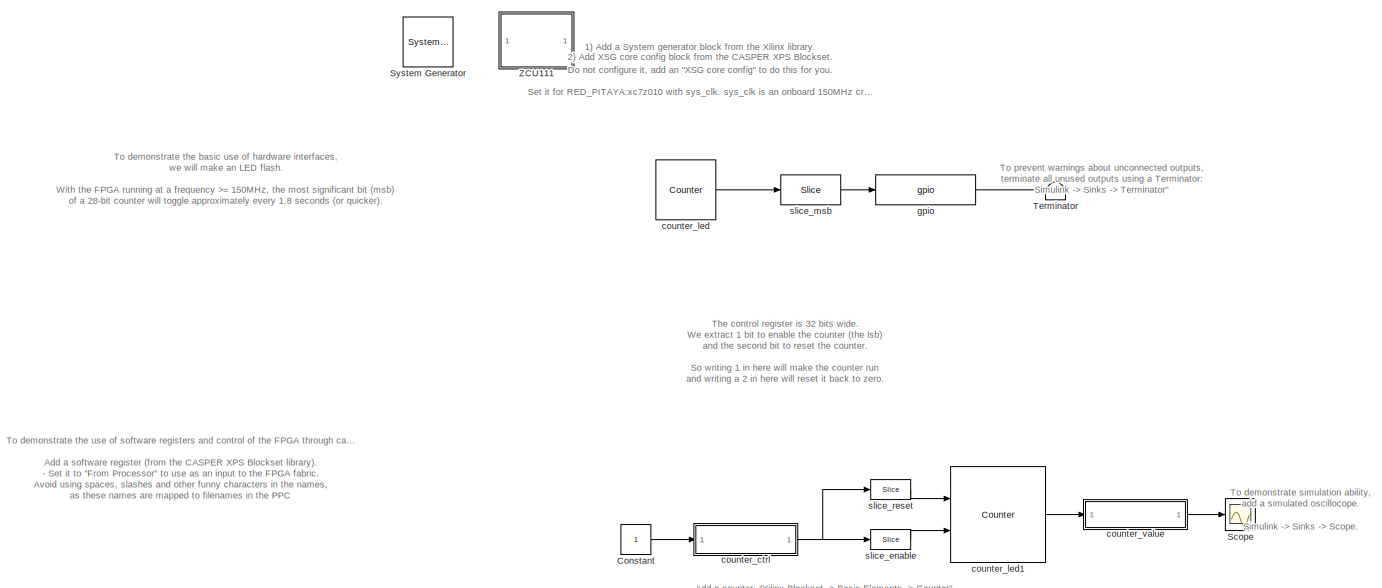
[diagram: root canvas - part 1/2, full width, top band]
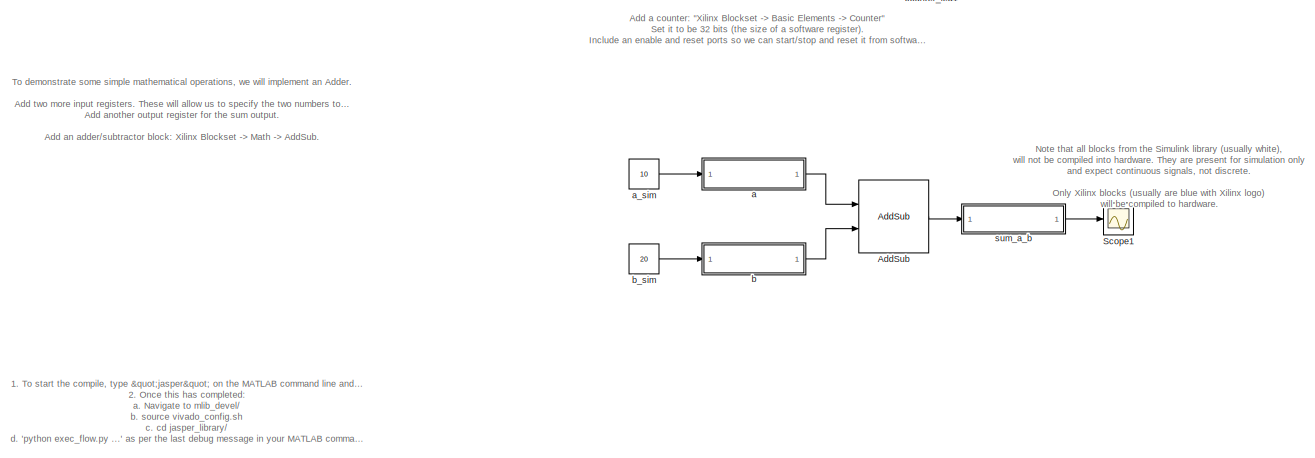
[diagram: root canvas - part 2/2, full width, bottom band]
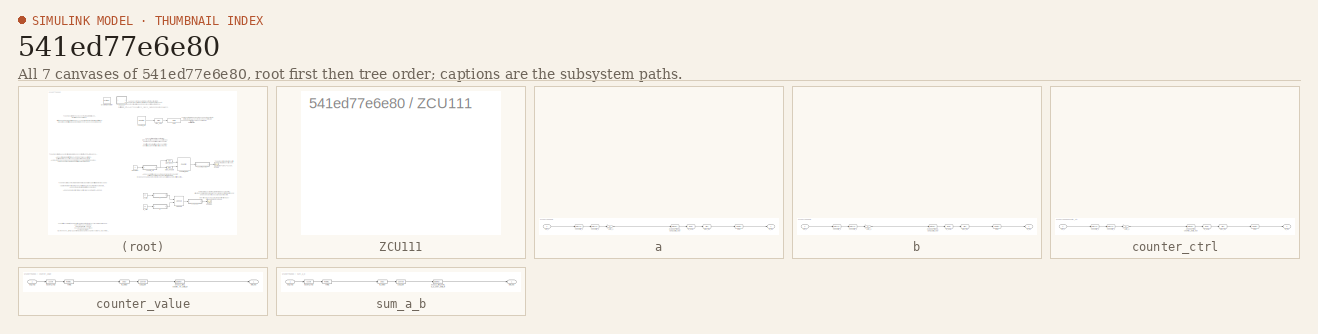
[diagram: thumbnail index - all 7 canvases of the model, root first then tree order]
MODEL slx_541ed77e6e80
KIND model
CONFIG AbsTol = auto
CONFIG EnableMultiTasking = off
CONFIG FixedStep = auto
CONFIG MaxStep = auto
CONFIG MinStep = auto
CONFIG RelTol = 1e-3
CONFIG SampleTimeConstraint = Unconstrained
CONFIG Solver = VariableStepAuto
CONFIG SolverName = VariableStepAuto
CONFIG StartTime = 0.0
CONFIG StopTime = 10.0
BLOCK [Reference]  System Generator  REF=xbsIndex_r4/ System Generator
  AttributesFormatString = System\nGenerator
  Ports = []
  SourceBlock = xbsIndex_r4/ System Generator
  SourceType = Xilinx System Generator Block
  Tag = genX
  UserDataPersistent = on
BLOCK [Reference] AddSub  REF=xbsIndex_r4/AddSub
  Ports = [2, 1]
  SourceBlock = xbsIndex_r4/AddSub
  SourceType = Xilinx Adder/Subtracter Block
BLOCK [Constant] Constant
BLOCK [Scope] Scope
  Floating = off
  NumInputPorts = 1
  Ports = [1]
  ScopeSpecificationString = Simulink.scopes.TimeScopeBlockCfg('CurrentConfiguration', extmgr.ConfigurationSet(extmgr.Configuration('Core','General UI',true),extmgr.Configuration('Core','Source UI',true),extmgr.Configuration('Sources','WiredSimulink',true,'DataLoggingVariableName','ScopeData1','DataLoggingLimitDataPoints',true,'DataLoggingSaveFormat','Array','DataLoggingDecimation','1','DataLoggingDecimateData',true),extmgr.C...<+165ch>
BLOCK [Scope] Scope1
  Floating = off
  NumInputPorts = 1
  Ports = [1]
  ScopeSpecificationString = Simulink.scopes.TimeScopeBlockCfg('CurrentConfiguration', extmgr.ConfigurationSet(extmgr.Configuration('Core','General UI',true),extmgr.Configuration('Core','Source UI',true),extmgr.Configuration('Sources','WiredSimulink',true,'DataLoggingLimitDataPoints',true,'DataLoggingSaveFormat','Array','DataLoggingDecimation','1','DataLoggingDecimateData',true),extmgr.Configuration('Visuals','Time Domain',tr...<+126ch>
BLOCK [Terminator] Terminator
BLOCK [SubSystem] ZCU111
  Ports = []
  RequestExecContextInheritance = off
  Tag = xps:xsg
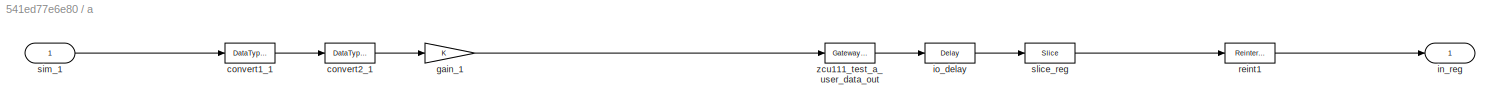
BLOCK [SubSystem] a
  AncestorBlock = xps_library/Memory/software_register
  AttributesFormatString = 1input
  Ports = [1, 1]
  RequestExecContextInheritance = off
  Tag = xps:sw_reg
BLOCK [DataTypeConversion] a/convert1_1
  LockScale = on
  OutDataTypeStr = fixdt('ufix32_En0')
  RndMeth = Floor
  SaturateOnIntegerOverflow = off
BLOCK [DataTypeConversion] a/convert2_1
  ConvertRealWorld = Stored Integer (SI)
  LockScale = on
  OutDataTypeStr = fixdt('ufix32_En0')
  RndMeth = Floor
  SaturateOnIntegerOverflow = off
BLOCK [Gain] a/gain_1
  OutDataTypeStr = Inherit: Inherit via internal rule
  ParamDataTypeStr = Inherit: Inherit via internal rule
  SaturateOnIntegerOverflow = off
BLOCK [Outport] a/in_reg
  IconDisplay = Port number
BLOCK [Reference] a/io_delay  REF=xbsIndex_r4/Delay
  Ports = [1, 1]
  SourceBlock = xbsIndex_r4/Delay
  SourceType = Xilinx Delay Block
BLOCK [Reference] a/reint1  REF=xbsIndex_r4/Reinterpret
  Ports = [1, 1]
  SourceBlock = xbsIndex_r4/Reinterpret
  SourceType = Xilinx Type Reinterpreter Block
BLOCK [Inport] a/sim_1
  IconDisplay = Port number
BLOCK [Reference] a/slice_reg  REF=xbsIndex_r4/Slice
  Ports = [1, 1]
  SourceBlock = xbsIndex_r4/Slice
  SourceType = Xilinx Bit Slice Extractor Block
BLOCK [Reference] a/zcu111_test_a_user_data_out  REF=xbsIndex_r4/Gateway In
  Ports = [1, 1]
  SourceBlock = xbsIndex_r4/Gateway In
  SourceType = Xilinx Gateway In Block
BLOCK [Constant] a_sim
  Value = 10
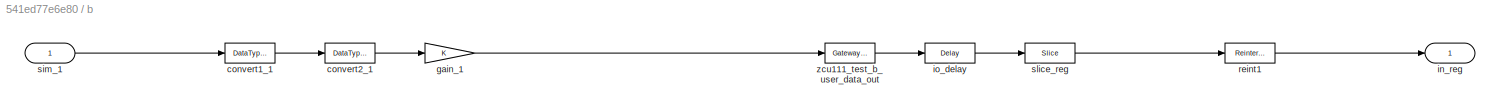
BLOCK [SubSystem] b
  AncestorBlock = xps_library/Memory/software_register
  AttributesFormatString = 1input
  Ports = [1, 1]
  RequestExecContextInheritance = off
  Tag = xps:sw_reg
BLOCK [DataTypeConversion] b/convert1_1
  LockScale = on
  OutDataTypeStr = fixdt('ufix32_En0')
  RndMeth = Floor
  SaturateOnIntegerOverflow = off
BLOCK [DataTypeConversion] b/convert2_1
  ConvertRealWorld = Stored Integer (SI)
  LockScale = on
  OutDataTypeStr = fixdt('ufix32_En0')
  RndMeth = Floor
  SaturateOnIntegerOverflow = off
BLOCK [Gain] b/gain_1
  OutDataTypeStr = Inherit: Inherit via internal rule
  ParamDataTypeStr = Inherit: Inherit via internal rule
  SaturateOnIntegerOverflow = off
BLOCK [Outport] b/in_reg
  IconDisplay = Port number
BLOCK [Reference] b/io_delay  REF=xbsIndex_r4/Delay
  Ports = [1, 1]
  SourceBlock = xbsIndex_r4/Delay
  SourceType = Xilinx Delay Block
BLOCK [Reference] b/reint1  REF=xbsIndex_r4/Reinterpret
  Ports = [1, 1]
  SourceBlock = xbsIndex_r4/Reinterpret
  SourceType = Xilinx Type Reinterpreter Block
BLOCK [Inport] b/sim_1
  IconDisplay = Port number
BLOCK [Reference] b/slice_reg  REF=xbsIndex_r4/Slice
  Ports = [1, 1]
  SourceBlock = xbsIndex_r4/Slice
  SourceType = Xilinx Bit Slice Extractor Block
BLOCK [Reference] b/zcu111_test_b_user_data_out  REF=xbsIndex_r4/Gateway In
  Ports = [1, 1]
  SourceBlock = xbsIndex_r4/Gateway In
  SourceType = Xilinx Gateway In Block
BLOCK [Constant] b_sim
  Value = 20
BLOCK [SubSystem] counter_ctrl
  AncestorBlock = xps_library/Memory/software_register
  AttributesFormatString = 1input
  Ports = [1, 1]
  RequestExecContextInheritance = off
  Tag = xps:sw_reg
BLOCK [DataTypeConversion] counter_ctrl/convert1_1
  LockScale = on
  OutDataTypeStr = fixdt('ufix32_En0')
  RndMeth = Floor
  SaturateOnIntegerOverflow = off
BLOCK [DataTypeConversion] counter_ctrl/convert2_1
  ConvertRealWorld = Stored Integer (SI)
  LockScale = on
  OutDataTypeStr = fixdt('ufix32_En0')
  RndMeth = Floor
  SaturateOnIntegerOverflow = off
BLOCK [Gain] counter_ctrl/gain_1
  OutDataTypeStr = Inherit: Inherit via internal rule
  ParamDataTypeStr = Inherit: Inherit via internal rule
  SaturateOnIntegerOverflow = off
BLOCK [Outport] counter_ctrl/in_reg
  IconDisplay = Port number
BLOCK [Reference] counter_ctrl/io_delay  REF=xbsIndex_r4/Delay
  Ports = [1, 1]
  SourceBlock = xbsIndex_r4/Delay
  SourceType = Xilinx Delay Block
BLOCK [Reference] counter_ctrl/reint1  REF=xbsIndex_r4/Reinterpret
  Ports = [1, 1]
  SourceBlock = xbsIndex_r4/Reinterpret
  SourceType = Xilinx Type Reinterpreter Block
BLOCK [Inport] counter_ctrl/sim_1
  IconDisplay = Port number
BLOCK [Reference] counter_ctrl/slice_reg  REF=xbsIndex_r4/Slice
  Ports = [1, 1]
  SourceBlock = xbsIndex_r4/Slice
  SourceType = Xilinx Bit Slice Extractor Block
BLOCK [Reference] counter_ctrl/zcu111_test_counter_ctrl_user_data_out  REF=xbsIndex_r4/Gateway In
  Ports = [1, 1]
  SourceBlock = xbsIndex_r4/Gateway In
  SourceType = Xilinx Gateway In Block
BLOCK [Reference] counter_led  REF=xbsIndex_r4/Counter
  Ports = [0, 1]
  SourceBlock = xbsIndex_r4/Counter
  SourceType = Xilinx Counter Block
BLOCK [Reference] counter_led1  REF=xbsIndex_r4/Counter
  Ports = [2, 1]
  SourceBlock = xbsIndex_r4/Counter
  SourceType = Xilinx Counter Block
BLOCK [SubSystem] counter_value
  AncestorBlock = xps_library/Memory/software_register
  AttributesFormatString = 1output
  Ports = [1, 1]
  RequestExecContextInheritance = off
  Tag = xps:sw_reg
BLOCK [Reference] counter_value/assert_reg  REF=xbsIndex_r4/Assert
  Ports = [1, 1]
  SourceBlock = xbsIndex_r4/Assert
  SourceType = Xilinx Assert Block
BLOCK [Reference] counter_value/cast_gw  REF=xbsIndex_r4/Convert
  Ports = [1, 1]
  SourceBlock = xbsIndex_r4/Convert
  SourceType = Xilinx Type Converter Block
BLOCK [Reference] counter_value/io_delay  REF=xbsIndex_r4/Delay
  Ports = [1, 1]
  SourceBlock = xbsIndex_r4/Delay
  SourceType = Xilinx Delay Block
BLOCK [Inport] counter_value/out_reg
  IconDisplay = Port number
BLOCK [Reference] counter_value/reint1  REF=xbsIndex_r4/Reinterpret
  Ports = [1, 1]
  SourceBlock = xbsIndex_r4/Reinterpret
  SourceType = Xilinx Type Reinterpreter Block
BLOCK [Outport] counter_value/sim_out
  IconDisplay = Port number
BLOCK [Reference] counter_value/zcu111_test_counter_value_user_data_in  REF=xbsIndex_r4/Gateway Out
  Ports = [1, 1]
  SourceBlock = xbsIndex_r4/Gateway Out
  SourceType = Xilinx Gateway Out Block
BLOCK [Reference] gpio  REF=xps_library/IO/gpio  (lib defined in mdl_00b5cec29cd0, mdl_02ab6ecaa3d1, +5 more)
  Ports = [1, 1]
  SourceBlock = xps_library/IO/gpio
  SourceProductName = CASPER XPS Blockset
  SourceType = gpio
  Tag = xps:gpio
BLOCK [Reference] slice_enable  REF=xbsIndex_r4/Slice
  Ports = [1, 1]
  SourceBlock = xbsIndex_r4/Slice
  SourceType = Xilinx Bit Slice Extractor Block
BLOCK [Reference] slice_msb  REF=xbsIndex_r4/Slice
  Ports = [1, 1]
  SourceBlock = xbsIndex_r4/Slice
  SourceType = Xilinx Bit Slice Extractor Block
BLOCK [Reference] slice_reset  REF=xbsIndex_r4/Slice
  Ports = [1, 1]
  SourceBlock = xbsIndex_r4/Slice
  SourceType = Xilinx Bit Slice Extractor Block
BLOCK [SubSystem] sum_a_b
  AncestorBlock = xps_library/Memory/software_register
  AttributesFormatString = 1output
  Ports = [1, 1]
  RequestExecContextInheritance = off
  Tag = xps:sw_reg
BLOCK [Reference] sum_a_b/assert_reg  REF=xbsIndex_r4/Assert
  Ports = [1, 1]
  SourceBlock = xbsIndex_r4/Assert
  SourceType = Xilinx Assert Block
BLOCK [Reference] sum_a_b/cast_gw  REF=xbsIndex_r4/Convert
  Ports = [1, 1]
  SourceBlock = xbsIndex_r4/Convert
  SourceType = Xilinx Type Converter Block
BLOCK [Reference] sum_a_b/io_delay  REF=xbsIndex_r4/Delay
  Ports = [1, 1]
  SourceBlock = xbsIndex_r4/Delay
  SourceType = Xilinx Delay Block
BLOCK [Inport] sum_a_b/out_reg
  IconDisplay = Port number
BLOCK [Reference] sum_a_b/reint1  REF=xbsIndex_r4/Reinterpret
  Ports = [1, 1]
  SourceBlock = xbsIndex_r4/Reinterpret
  SourceType = Xilinx Type Reinterpreter Block
BLOCK [Outport] sum_a_b/sim_out
  IconDisplay = Port number
BLOCK [Reference] sum_a_b/zcu111_test_sum_a_b_user_data_in  REF=xbsIndex_r4/Gateway Out
  Ports = [1, 1]
  SourceBlock = xbsIndex_r4/Gateway Out
  SourceType = Xilinx Gateway Out Block
ANNOTATION (root): 1) Add a System generator block from the Xilinx library. Do not configure it, add an "XSG core config" to do this for you. 2) Add XSG core config block from the CASPER XPS Blockset. Set it for RED_PITAYA:xc7z010 with sys_clk. sys_clk is an onboard 150MHz crystal.
ANNOTATION (root): 1. To start the compile, type "jasper" on the MATLAB command line and press enter. 2. Once this has completed: a. Navigate to mlib_devel/ b. source vivado_config.sh c. cd jasper_library/ d. 'python exec_flow.py ...' as per the last debug message in your MATLAB command line window.
ANNOTATION (root): Add a counter: "Xilinx Blockset -> Basic Elements -> Counter" Set it to be 32 bits (the size of a software register). Include an enable and reset ports so we can start/stop and reset it from software.
ANNOTATION (root): Note that all blocks from the Simulink library (usually white), will not be compiled into hardware. They are present for simulation only and expect continuous signals, not discrete. Only Xilinx blocks (usually are blue with Xilinx logo) will be compiled to hardware. For this reason, you need to use "gateway" blocks whenever connecting a Simulink scope or constant for simulations. Some of the CASPE...<+82ch>
ANNOTATION (root): The control register is 32 bits wide. We extract 1 bit to enable the counter (the lsb) and the second bit to reset the counter. So writing 1 in here will make the counter run and writing a 2 in here will reset it back to zero. Make sure the output is set to "boolean" and that you're slicing from the lsb end.
ANNOTATION (root): To demonstrate simulation ability, add a simulated oscillocope. Simulink -> Sinks -> Scope.
ANNOTATION (root): To demonstrate some simple mathematical operations, we will implement an Adder. Add two more input registers. These will allow us to specify the two numbers to add. Add another output register for the sum output. Add an adder/subtractor block: Xilinx Blockset -> Math -> AddSub. The output register is 32 bits. If we add two 32 bit numbers, we will have 33 bits. There are a number of ways of fixing ...<+475ch>
ANNOTATION (root): To demonstrate the basic use of hardware interfaces, we will make an LED flash. With the FPGA running at a frequency >= 150MHz, the most significant bit (msb) of a 28-bit counter will toggle approximately every 1.8 seconds (or quicker). Add a counter (Xilinx Blockset -> Basic Elements -> Counter). Set it for free running, 28 bits, unsigned. Add a slice block to select out the msb (Xilinx Blockset ...<+209ch>
ANNOTATION (root): To demonstrate the use of software registers and control of the FPGA through casperfpga: Add a software register (from the CASPER XPS Blockset library). - Set it to "From Processor" to use as an input to the FPGA fabric. Avoid using spaces, slashes and other funny characters in the names, as these names are mapped to filenames in the PPC (spaces automatically get remapped to underscores anyway). W...<+258ch>
ANNOTATION (root): To prevent warnings about unconnected outputs, terminate all unused outputs using a Terminator: Simulink -> Sinks -> Terminator"
LINE AddSub:1 -> sum_a_b:1
LINE Constant:1 -> counter_ctrl:1
LINE a:1 -> AddSub:1
LINE a_sim:1 -> a:1
LINE b:1 -> AddSub:2
LINE b_sim:1 -> b:1
NET counter_ctrl:1 -> slice_enable:1, slice_reset:1
LINE counter_led1:1 -> counter_value:1
LINE counter_led:1 -> slice_msb:1
LINE counter_value:1 -> Scope:1
LINE gpio:1 -> Terminator:1
LINE slice_enable:1 -> counter_led1:2
LINE slice_msb:1 -> gpio:1
LINE slice_reset:1 -> counter_led1:1
LINE sum_a_b:1 -> Scope1:1
note: NET lines group one-source signal fan-out (src -> all destinations, sorted); 1:1 wires keep LINE
